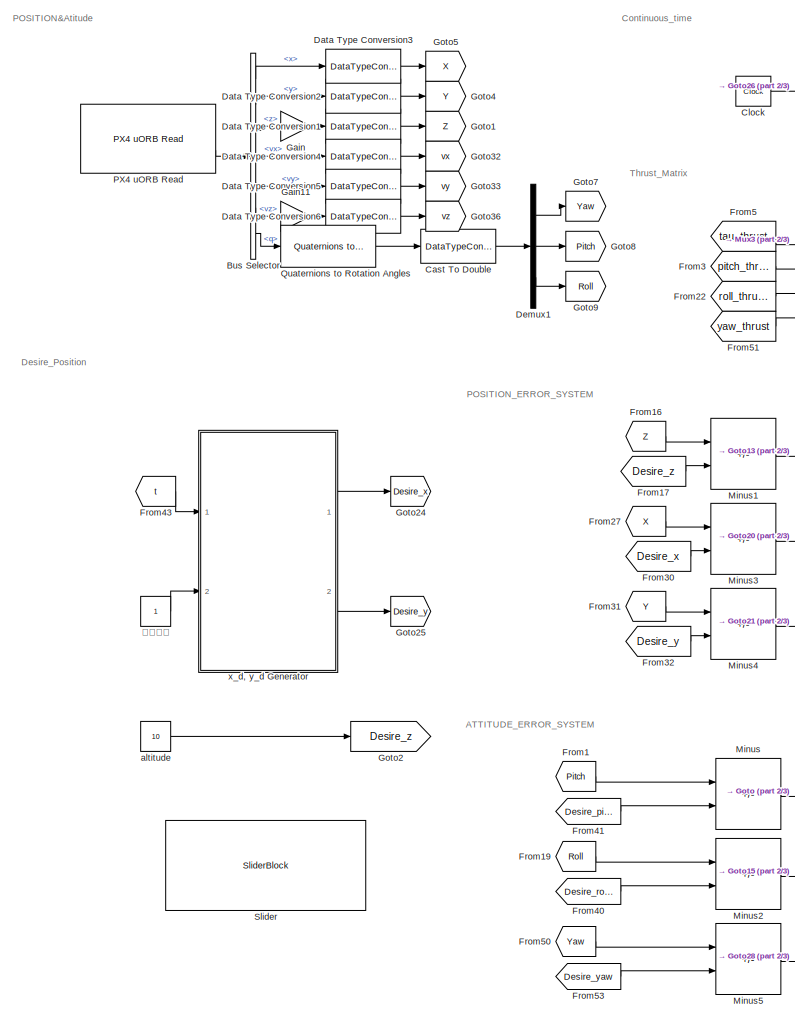
[diagram: root canvas - part 1/3, left side, full height]
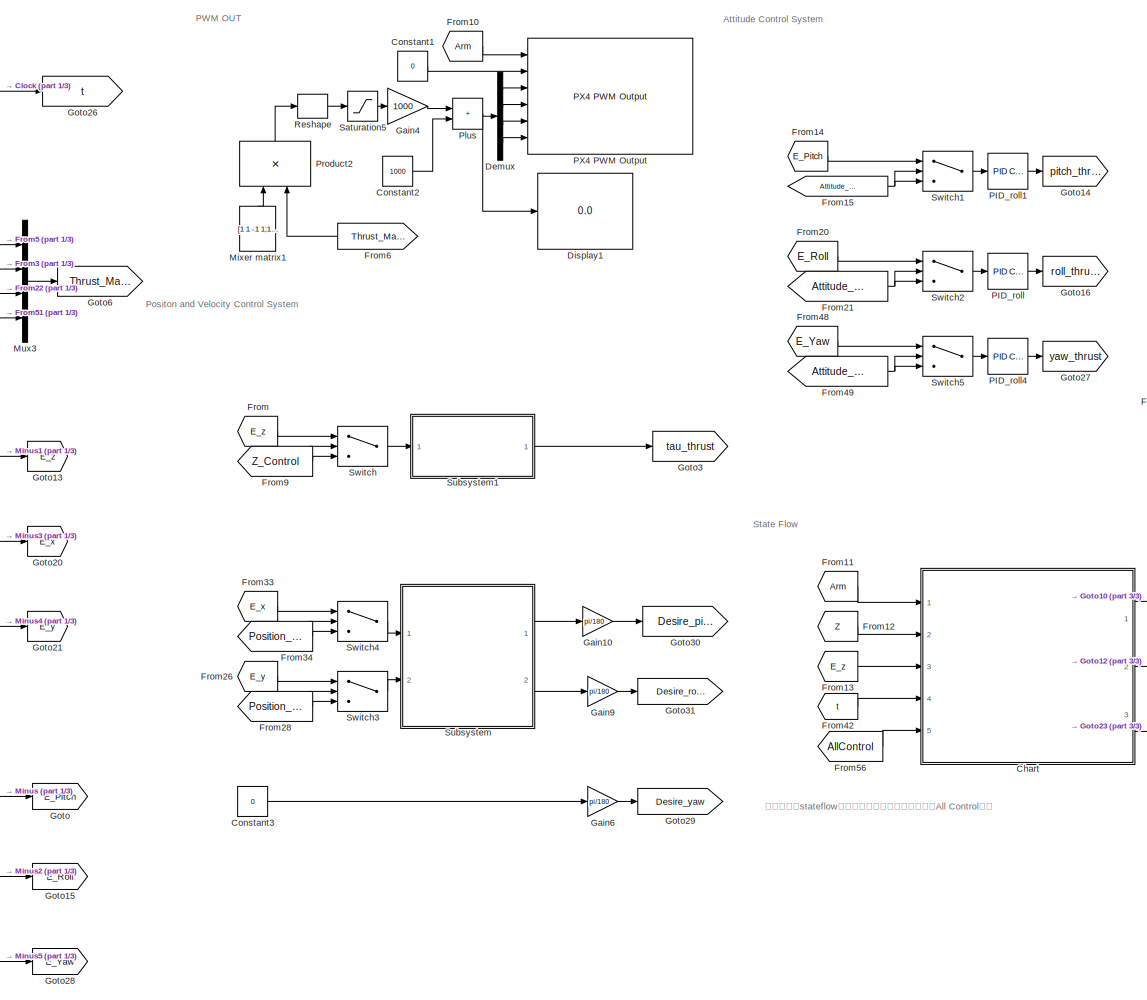
[diagram: root canvas - part 2/3, center side, full height]
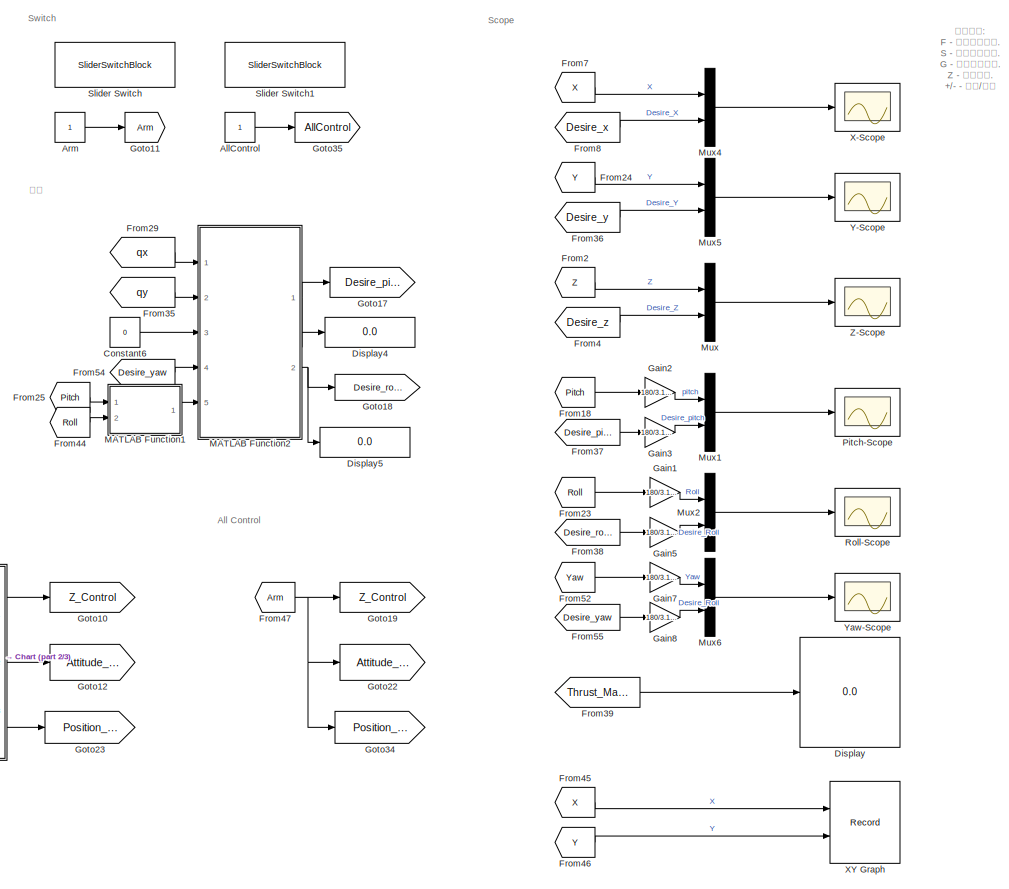
[diagram: root canvas - part 3/3, right side, full height]
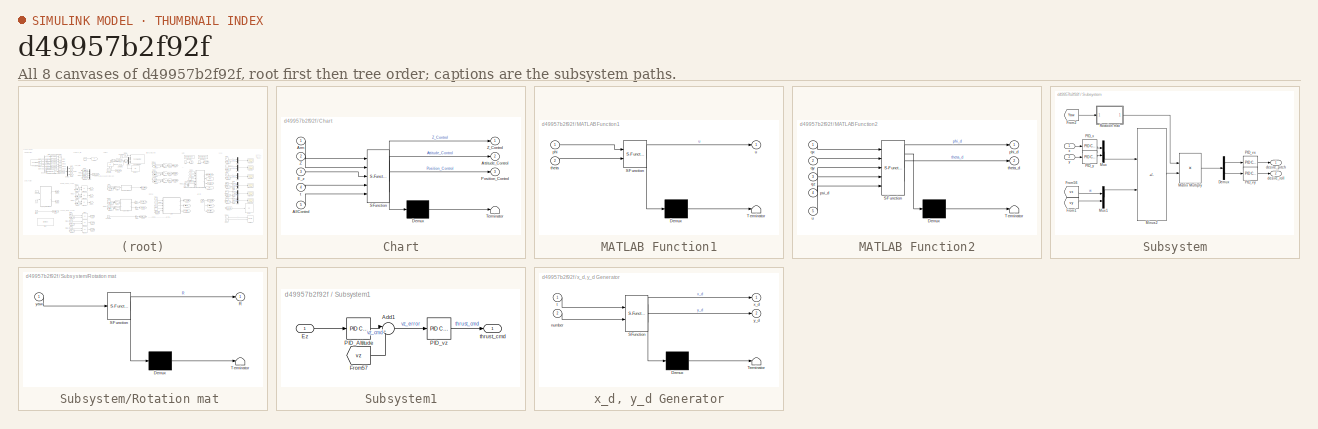
[diagram: thumbnail index - all 8 canvases of the model, root first then tree order]
MODEL slx_d49957b2f92f
KIND model
CONFIG AbsTol = auto
CONFIG EnableMultiTasking = on
CONFIG FixedStep = auto
CONFIG MaxStep = auto
CONFIG MinStep = auto
CONFIG RelTol = 1e-3
CONFIG SampleTimeConstraint = Unconstrained
CONFIG SolverName = FixedStepDiscrete
CONFIG StartTime = 0.0
CONFIG StopTime = inf
BLOCK [Constant] AllControl
  OutDataTypeStr = boolean
BLOCK [Constant] Arm
  OutDataTypeStr = boolean
BLOCK [BusSelector] Bus Selector
  OutputSignals = x,y,z,vx,vy,vz,q
  Ports = [1, 7]
BLOCK [DataTypeConversion] Cast To Double
  OutDataTypeStr = double
  RndMeth = Floor
  SaturateOnIntegerOverflow = off
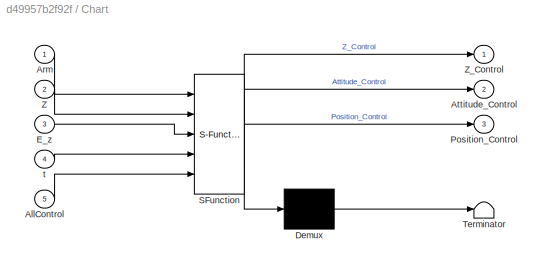
BLOCK [SubSystem] Chart
  ErrorFcn = Stateflow.Translate.translate
  PermitHierarchicalResolution = ExplicitOnly
  Ports = [5, 3]
  RequestExecContextInheritance = off
  SFBlockType = Chart
  TreatAsAtomicUnit = on
BLOCK [Demux] Chart/ Demux 
  Outputs = 1
  Ports = [1, 1]
BLOCK [S-Function] Chart/ SFunction 
  EnableBusSupport = on
  FunctionName = sf_sfun
  PortCounts = [5 4]
  Ports = [5, 4]
  SFcnIsStateOwnerBlock = off
  SFunctionDeploymentMode = off
  Tag = Stateflow S-Function 3
BLOCK [Terminator] Chart/ Terminator 
BLOCK [Inport] Chart/AllControl
  Port = 5
BLOCK [Inport] Chart/Arm
BLOCK [Outport] Chart/Attitude_Control
  Port = 2
BLOCK [Inport] Chart/E_z
  Port = 3
BLOCK [Outport] Chart/Position_Control
  Port = 3
BLOCK [Inport] Chart/Z
  Port = 2
BLOCK [Outport] Chart/Z_Control
BLOCK [Inport] Chart/t
  Port = 4
BLOCK [Clock] Clock
  DisplayTime = on
BLOCK [Constant] Constant1
  OutDataTypeStr = boolean
  Value = 0
BLOCK [Constant] Constant2
  OutDataTypeStr = uint16
  Value = 1000
BLOCK [Constant] Constant3
  Value = 0
BLOCK [Constant] Constant6
  Commented = on
  Value = 0
BLOCK [DataTypeConversion] Data Type Conversion1
  OutDataTypeStr = double
  RndMeth = Floor
  SaturateOnIntegerOverflow = off
BLOCK [DataTypeConversion] Data Type Conversion2
  OutDataTypeStr = double
  RndMeth = Floor
  SaturateOnIntegerOverflow = off
BLOCK [DataTypeConversion] Data Type Conversion3
  OutDataTypeStr = double
  RndMeth = Floor
  SaturateOnIntegerOverflow = off
BLOCK [DataTypeConversion] Data Type Conversion4
  OutDataTypeStr = double
  RndMeth = Floor
  SaturateOnIntegerOverflow = off
BLOCK [DataTypeConversion] Data Type Conversion5
  OutDataTypeStr = double
  RndMeth = Floor
  SaturateOnIntegerOverflow = off
BLOCK [DataTypeConversion] Data Type Conversion6
  OutDataTypeStr = double
  RndMeth = Floor
  SaturateOnIntegerOverflow = off
BLOCK [Demux] Demux
  Ports = [1, 4]
BLOCK [Demux] Demux1
  Outputs = 3
  Ports = [1, 3]
BLOCK [Display] Display
  Decimation = 1
  Ports = [1]
BLOCK [Display] Display1
  Decimation = 1
  Ports = [1]
BLOCK [Display] Display4
  Commented = on
  Decimation = 1
  Ports = [1]
BLOCK [Display] Display5
  Commented = on
  Decimation = 1
  Ports = [1]
BLOCK [From] From
  GotoTag = E_z
  TagVisibility = global
BLOCK [From] From1
  GotoTag = Pitch
  TagVisibility = global
BLOCK [From] From10
  GotoTag = Arm
BLOCK [From] From11
  GotoTag = Arm
BLOCK [From] From12
  GotoTag = Z
  TagVisibility = global
BLOCK [From] From13
  GotoTag = E_z
  TagVisibility = global
BLOCK [From] From14
  GotoTag = E_Pitch
  TagVisibility = global
BLOCK [From] From15
  GotoTag = Attitude_Control
BLOCK [From] From16
  GotoTag = Z
  TagVisibility = global
BLOCK [From] From17
  GotoTag = Desire_z
  TagVisibility = global
BLOCK [From] From18
  GotoTag = Pitch
  TagVisibility = global
BLOCK [From] From19
  GotoTag = Roll
BLOCK [From] From2
  GotoTag = Z
  TagVisibility = global
BLOCK [From] From20
  GotoTag = E_Roll
  TagVisibility = global
BLOCK [From] From21
  GotoTag = Attitude_Control
BLOCK [From] From22
  GotoTag = roll_thrust
BLOCK [From] From23
  GotoTag = Roll
BLOCK [From] From24
  GotoTag = Y
  TagVisibility = global
BLOCK [From] From25
  Commented = on
  GotoTag = Pitch
  TagVisibility = global
BLOCK [From] From26
  GotoTag = E_y
  TagVisibility = global
BLOCK [From] From27
  GotoTag = X
  TagVisibility = global
BLOCK [From] From28
  GotoTag = Position_Control
  TagVisibility = global
BLOCK [From] From29
  Commented = on
  GotoTag = qx
BLOCK [From] From3
  GotoTag = pitch_thrust
BLOCK [From] From30
  GotoTag = Desire_x
  TagVisibility = global
BLOCK [From] From31
  GotoTag = Y
  TagVisibility = global
BLOCK [From] From32
  GotoTag = Desire_y
  TagVisibility = global
BLOCK [From] From33
  GotoTag = E_x
  TagVisibility = global
BLOCK [From] From34
  GotoTag = Position_Control
  TagVisibility = global
BLOCK [From] From35
  Commented = on
  GotoTag = qy
BLOCK [From] From36
  GotoTag = Desire_y
  TagVisibility = global
BLOCK [From] From37
  GotoTag = Desire_pitch
  TagVisibility = global
BLOCK [From] From38
  GotoTag = Desire_roll
  TagVisibility = global
BLOCK [From] From39
  GotoTag = Thrust_Matrix
  TagVisibility = global
BLOCK [From] From4
  GotoTag = Desire_z
  TagVisibility = global
BLOCK [From] From40
  GotoTag = Desire_roll
  TagVisibility = global
BLOCK [From] From41
  GotoTag = Desire_pitch
  TagVisibility = global
BLOCK [From] From42
  GotoTag = t
  TagVisibility = global
BLOCK [From] From43
  GotoTag = t
  TagVisibility = global
BLOCK [From] From44
  Commented = on
  GotoTag = Roll
BLOCK [From] From45
  GotoTag = X
  TagVisibility = global
BLOCK [From] From46
  GotoTag = Y
  TagVisibility = global
BLOCK [From] From47
  Commented = on
  GotoTag = Arm
BLOCK [From] From48
  GotoTag = E_Yaw
  TagVisibility = global
BLOCK [From] From49
  GotoTag = Attitude_Control
BLOCK [From] From5
  GotoTag = tau_thrust
BLOCK [From] From50
  GotoTag = Yaw
  TagVisibility = global
BLOCK [From] From51
  GotoTag = yaw_thrust
BLOCK [From] From52
  GotoTag = Yaw
  TagVisibility = global
BLOCK [From] From53
  GotoTag = Desire_yaw
BLOCK [From] From54
  Commented = on
  GotoTag = Desire_yaw
BLOCK [From] From55
  GotoTag = Desire_yaw
BLOCK [From] From56
  GotoTag = AllControl
BLOCK [From] From6
  GotoTag = Thrust_Matrix
  NameLocation = top
  TagVisibility = global
BLOCK [From] From7
  GotoTag = X
  TagVisibility = global
BLOCK [From] From8
  GotoTag = Desire_x
  TagVisibility = global
BLOCK [From] From9
  GotoTag = Z_Control
BLOCK [Gain] Gain
  Gain = -1
BLOCK [Gain] Gain1
  Gain = 180/3.1415926
BLOCK [Gain] Gain10
  Gain = pi/180
BLOCK [Gain] Gain11
  Gain = -1
BLOCK [Gain] Gain2
  Gain = 180/3.1415926
BLOCK [Gain] Gain3
  Gain = 180/3.1415926
BLOCK [Gain] Gain4
  Gain = 1000
  OutDataTypeStr = uint16
BLOCK [Gain] Gain5
  Gain = 180/3.1415926
BLOCK [Gain] Gain6
  Gain = pi/180
BLOCK [Gain] Gain7
  Gain = 180/3.1415926
BLOCK [Gain] Gain8
  Gain = 180/3.1415926
BLOCK [Gain] Gain9
  Gain = pi/180
BLOCK [Goto] Goto
  GotoTag = E_Pitch
  TagVisibility = global
BLOCK [Goto] Goto1
  GotoTag = Z
  TagVisibility = global
BLOCK [Goto] Goto10
  GotoTag = Z_Control
BLOCK [Goto] Goto11
  GotoTag = Arm
BLOCK [Goto] Goto12
  GotoTag = Attitude_Control
BLOCK [Goto] Goto13
  GotoTag = E_z
  TagVisibility = global
BLOCK [Goto] Goto14
  GotoTag = pitch_thrust
BLOCK [Goto] Goto15
  GotoTag = E_Roll
  TagVisibility = global
BLOCK [Goto] Goto16
  GotoTag = roll_thrust
BLOCK [Goto] Goto17
  Commented = on
  GotoTag = Desire_pitch
  TagVisibility = global
BLOCK [Goto] Goto18
  Commented = on
  GotoTag = Desire_roll
  TagVisibility = global
BLOCK [Goto] Goto19
  Commented = on
  GotoTag = Z_Control
BLOCK [Goto] Goto2
  GotoTag = Desire_z
  TagVisibility = global
BLOCK [Goto] Goto20
  GotoTag = E_x
  TagVisibility = global
BLOCK [Goto] Goto21
  GotoTag = E_y
  TagVisibility = global
BLOCK [Goto] Goto22
  Commented = on
  GotoTag = Attitude_Control
BLOCK [Goto] Goto23
  GotoTag = Position_Control
  TagVisibility = global
BLOCK [Goto] Goto24
  GotoTag = Desire_x
  TagVisibility = global
BLOCK [Goto] Goto25
  GotoTag = Desire_y
  TagVisibility = global
BLOCK [Goto] Goto26
  GotoTag = t
  TagVisibility = global
BLOCK [Goto] Goto27
  GotoTag = yaw_thrust
BLOCK [Goto] Goto28
  GotoTag = E_Yaw
  TagVisibility = global
BLOCK [Goto] Goto29
  GotoTag = Desire_yaw
BLOCK [Goto] Goto3
  GotoTag = tau_thrust
BLOCK [Goto] Goto30
  GotoTag = Desire_pitch
  TagVisibility = global
BLOCK [Goto] Goto31
  GotoTag = Desire_roll
  TagVisibility = global
BLOCK [Goto] Goto32
  GotoTag = vx
  TagVisibility = global
BLOCK [Goto] Goto33
  GotoTag = vy
  TagVisibility = global
BLOCK [Goto] Goto34
  Commented = on
  GotoTag = Position_Control
  TagVisibility = global
BLOCK [Goto] Goto35
  GotoTag = AllControl
BLOCK [Goto] Goto36
  GotoTag = vz
  TagVisibility = global
BLOCK [Goto] Goto4
  GotoTag = Y
  TagVisibility = global
BLOCK [Goto] Goto5
  GotoTag = X
  TagVisibility = global
BLOCK [Goto] Goto6
  GotoTag = Thrust_Matrix
  TagVisibility = global
BLOCK [Goto] Goto7
  GotoTag = Yaw
  TagVisibility = global
BLOCK [Goto] Goto8
  GotoTag = Pitch
  TagVisibility = global
BLOCK [Goto] Goto9
  GotoTag = Roll
BLOCK [SubSystem] MATLAB Function1
  Commented = on
  ErrorFcn = Stateflow.Translate.translate
  PermitHierarchicalResolution = ExplicitOnly
  Ports = [2, 1]
  RequestExecContextInheritance = off
  SFBlockType = MATLAB Function
  TreatAsAtomicUnit = on
BLOCK [Demux] MATLAB Function1/ Demux 
  Outputs = 1
  Ports = [1, 1]
BLOCK [S-Function] MATLAB Function1/ SFunction 
  EnableBusSupport = on
  FunctionName = sf_sfun
  PortCounts = [2 2]
  Ports = [2, 2]
  SFcnIsStateOwnerBlock = off
  SFunctionDeploymentMode = off
  Tag = Stateflow S-Function 1
BLOCK [Terminator] MATLAB Function1/ Terminator 
BLOCK [Inport] MATLAB Function1/phi
BLOCK [Inport] MATLAB Function1/theta
  Port = 2
BLOCK [Outport] MATLAB Function1/u
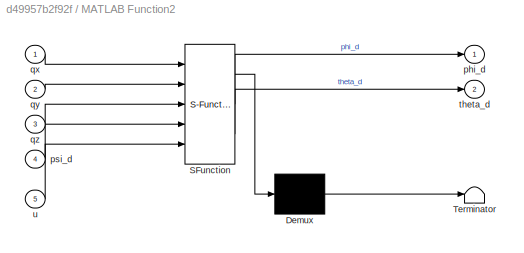
BLOCK [SubSystem] MATLAB Function2
  Commented = on
  ErrorFcn = Stateflow.Translate.translate
  PermitHierarchicalResolution = ExplicitOnly
  Ports = [5, 2]
  RequestExecContextInheritance = off
  SFBlockType = MATLAB Function
  TreatAsAtomicUnit = on
BLOCK [Demux] MATLAB Function2/ Demux 
  Outputs = 1
  Ports = [1, 1]
BLOCK [S-Function] MATLAB Function2/ SFunction 
  EnableBusSupport = on
  FunctionName = sf_sfun
  PortCounts = [5 3]
  Ports = [5, 3]
  SFcnIsStateOwnerBlock = off
  SFunctionDeploymentMode = off
  Tag = Stateflow S-Function 10
BLOCK [Terminator] MATLAB Function2/ Terminator 
BLOCK [Outport] MATLAB Function2/phi_d
BLOCK [Inport] MATLAB Function2/psi_d
  Port = 4
BLOCK [Inport] MATLAB Function2/qx
BLOCK [Inport] MATLAB Function2/qy
  Port = 2
BLOCK [Inport] MATLAB Function2/qz
  Port = 3
BLOCK [Outport] MATLAB Function2/theta_d
  Port = 2
BLOCK [Inport] MATLAB Function2/u
  Port = 5
BLOCK [Sum] Minus
  IconShape = rectangular
  Inputs = -+
  Ports = [2, 1]
BLOCK [Sum] Minus1
  IconShape = rectangular
  Inputs = -+
  Ports = [2, 1]
BLOCK [Sum] Minus2
  IconShape = rectangular
  Inputs = -+
  Ports = [2, 1]
BLOCK [Sum] Minus3
  IconShape = rectangular
  Inputs = -+
  Ports = [2, 1]
BLOCK [Sum] Minus4
  IconShape = rectangular
  Inputs = -+
  Ports = [2, 1]
BLOCK [Sum] Minus5
  IconShape = rectangular
  Inputs = -+
  Ports = [2, 1]
BLOCK [Constant] Mixer matrix1
  NameLocation = left
  OutDataTypeStr = Inherit: Inherit via back propagation
  Value = [1 1 -1 1;1 -1 1 1;1 1 1 -1;1 -1 -1 -1]
BLOCK [Mux] Mux
  DisplayOption = bar
  Inputs = 2
  Ports = [2, 1]
BLOCK [Mux] Mux1
  DisplayOption = bar
  Inputs = 2
  Ports = [2, 1]
BLOCK [Mux] Mux2
  DisplayOption = bar
  Inputs = 2
  Ports = [2, 1]
BLOCK [Mux] Mux3
  DisplayOption = bar
  Ports = [4, 1]
BLOCK [Mux] Mux4
  DisplayOption = bar
  Inputs = 2
  Ports = [2, 1]
BLOCK [Mux] Mux5
  DisplayOption = bar
  Inputs = 2
  Ports = [2, 1]
BLOCK [Mux] Mux6
  DisplayOption = bar
  Inputs = 2
  Ports = [2, 1]
BLOCK [Reference] PID_roll  REF=slpidlib/PID Controller
  Ports = [1, 1]
  SourceBlock = slpidlib/PID Controller
  SourceProductBaseCode = SL
  SourceType = PID 1dof
BLOCK [Reference] PID_roll1  REF=slpidlib/PID Controller
  Ports = [1, 1]
  SourceBlock = slpidlib/PID Controller
  SourceProductBaseCode = SL
  SourceType = PID 1dof
BLOCK [Reference] PID_roll4  REF=slpidlib/PID Controller
  Ports = [1, 1]
  SourceBlock = slpidlib/PID Controller
  SourceProductBaseCode = SL
  SourceType = PID 1dof
BLOCK [Reference] PX4 PWM Output  REF=px4lib/PX4 PWM Output
  Ports = [6]
  SourceBlock = px4lib/PX4 PWM Output
  SourceProductBaseCode = PX4AUTOPILOTS
  SourceType = PX4 PWM Output
BLOCK [Reference] PX4 uORB Read  REF=px4uORBlib/PX4 uORB Read
  Ports = [0, 2]
  SourceBlock = px4uORBlib/PX4 uORB Read
  SourceProductBaseCode = PX4AUTOPILOTS
  SourceType = PX4 uORB Read
BLOCK [Scope] Pitch-Scope
  Floating = off
  NumInputPorts = 1
  Ports = [1]
  ScopeSpecificationString = Simulink.scopes.TimeScopeBlockCfg('CurrentConfiguration', extmgr.ConfigurationSet(extmgr.Configuration('Core','General UI',true),extmgr.Configuration('Core','Source UI',true),extmgr.Configuration('Sources','WiredSimulink',true,'DataLoggingVariableName','ScopeData1'),extmgr.Configuration('Visuals','Time Domain',true,'SerializedDisplays',{struct('MinYLimReal','-20.28641','MaxYLimReal','16.23143','YL...<+1509ch>
BLOCK [Sum] Plus
  IconShape = rectangular
  Ports = [2, 1]
BLOCK [Product] Product2
  Multiplication = Matrix(*)
  NameLocation = right
  Ports = [2, 1]
  RndMeth = Zero
BLOCK [Reference] Quaternions to Rotation Angles  REF=sharedtransform/Quaternions to Rotation Angles
  AttributesFormatString = Rotation Order: %<rotationOrder>
  Ports = [1, 1]
  SourceBlock = sharedtransform/Quaternions to Rotation Angles
  SourceProductBaseCode = AE,PW,DR,MT,VE
  SourceType = Quat2Ang
BLOCK [Reshape] Reshape
  OutputDimensionality = Row vector (2-D)
  Ports = [1, 1]
BLOCK [Scope] Roll-Scope
  Floating = off
  NumInputPorts = 1
  Ports = [1]
  ScopeSpecificationString = Simulink.scopes.TimeScopeBlockCfg('CurrentConfiguration', extmgr.ConfigurationSet(extmgr.Configuration('Core','General UI',true),extmgr.Configuration('Core','Source UI',true),extmgr.Configuration('Sources','WiredSimulink',true,'DataLoggingVariableName','ScopeData2'),extmgr.Configuration('Visuals','Time Domain',true,'SerializedDisplays',{struct('MinYLimReal','-39.4803','MaxYLimReal','47.13303','YLa...<+1505ch>
BLOCK [Saturate] Saturation5
  LowerLimit = 0
  UpperLimit = 1
BLOCK [SliderBlock] Slider
BLOCK [SliderSwitchBlock] Slider Switch
BLOCK [SliderSwitchBlock] Slider Switch1
BLOCK [SubSystem] Subsystem
  Ports = [2, 2]
  RequestExecContextInheritance = off
BLOCK [Demux] Subsystem/Demux
  Outputs = 2
  Ports = [1, 2]
BLOCK [From] Subsystem/From1
  GotoTag = vy
  TagVisibility = global
BLOCK [From] Subsystem/From2
  GotoTag = Yaw
  TagVisibility = global
BLOCK [From] Subsystem/From56
  GotoTag = vx
  TagVisibility = global
BLOCK [Product] Subsystem/Matrix Multiply
  Multiplication = Matrix(*)
  Ports = [2, 1]
BLOCK [Sum] Subsystem/Minus2
  IconShape = rectangular
  Inputs = +-
  Ports = [2, 1]
BLOCK [Mux] Subsystem/Mux
  DisplayOption = bar
  Inputs = 2
  Ports = [2, 1]
BLOCK [Mux] Subsystem/Mux1
  DisplayOption = bar
  Inputs = 2
  Ports = [2, 1]
BLOCK [Reference] Subsystem/PID_vx  REF=slpidlib/PID Controller
  NameLocation = left
  Ports = [1, 1]
  SourceBlock = slpidlib/PID Controller
  SourceProductBaseCode = SL
  SourceType = PID 1dof
BLOCK [Reference] Subsystem/PID_vy  REF=slpidlib/PID Controller
  NameLocation = left
  Ports = [1, 1]
  SourceBlock = slpidlib/PID Controller
  SourceProductBaseCode = SL
  SourceType = PID 1dof
BLOCK [Reference] Subsystem/PID_x  REF=slpidlib/PID Controller
  NameLocation = left
  Ports = [1, 1]
  SourceBlock = slpidlib/PID Controller
  SourceProductBaseCode = SL
  SourceType = PID 1dof
BLOCK [Reference] Subsystem/PID_y  REF=slpidlib/PID Controller
  Ports = [1, 1]
  SourceBlock = slpidlib/PID Controller
  SourceProductBaseCode = SL
  SourceType = PID 1dof
BLOCK [SubSystem] Subsystem/Rotation mat 
  ErrorFcn = Stateflow.Translate.translate
  PermitHierarchicalResolution = ExplicitOnly
  Ports = [1, 1]
  RequestExecContextInheritance = off
  SFBlockType = MATLAB Function
  TreatAsAtomicUnit = on
BLOCK [Demux] Subsystem/Rotation mat / Demux 
  Outputs = 1
  Ports = [1, 1]
BLOCK [S-Function] Subsystem/Rotation mat / SFunction 
  EnableBusSupport = on
  FunctionName = sf_sfun
  PortCounts = [1 2]
  Ports = [1, 2]
  SFcnIsStateOwnerBlock = off
  SFunctionDeploymentMode = off
  Tag = Stateflow S-Function 2
BLOCK [Terminator] Subsystem/Rotation mat / Terminator 
BLOCK [Outport] Subsystem/Rotation mat /R
BLOCK [Inport] Subsystem/Rotation mat /yaw
BLOCK [Outport] Subsystem/desire_pitch
BLOCK [Outport] Subsystem/desire_roll
  Port = 2
BLOCK [Inport] Subsystem/x
BLOCK [Inport] Subsystem/y
  Port = 2
BLOCK [SubSystem] Subsystem1
  Ports = [1, 1]
  RequestExecContextInheritance = off
BLOCK [Sum] Subsystem1/Add1
  Inputs = |+-
  Ports = [2, 1]
BLOCK [Inport] Subsystem1/Ez
BLOCK [From] Subsystem1/From57
  GotoTag = vz
  TagVisibility = global
BLOCK [Reference] Subsystem1/PID_Altitude  REF=slpidlib/PID Controller
  Ports = [1, 1]
  SourceBlock = slpidlib/PID Controller
  SourceProductBaseCode = SL
  SourceType = PID 1dof
BLOCK [Reference] Subsystem1/PID_vz  REF=slpidlib/PID Controller
  Ports = [1, 1]
  SourceBlock = slpidlib/PID Controller
  SourceProductBaseCode = SL
  SourceType = PID 1dof
BLOCK [Outport] Subsystem1/thrust_cmd
BLOCK [Switch] Switch
  Criteria = u2 ~= 0
  InputSameDT = off
  SaturateOnIntegerOverflow = off
BLOCK [Switch] Switch1
  Criteria = u2 ~= 0
  InputSameDT = off
  SaturateOnIntegerOverflow = off
BLOCK [Switch] Switch2
  Criteria = u2 ~= 0
  InputSameDT = off
  SaturateOnIntegerOverflow = off
BLOCK [Switch] Switch3
  Criteria = u2 ~= 0
  InputSameDT = off
  SaturateOnIntegerOverflow = off
BLOCK [Switch] Switch4
  Criteria = u2 ~= 0
  InputSameDT = off
  SaturateOnIntegerOverflow = off
BLOCK [Switch] Switch5
  Criteria = u2 ~= 0
  InputSameDT = off
  SaturateOnIntegerOverflow = off
BLOCK [Scope] X-Scope
  Floating = off
  NumInputPorts = 1
  Ports = [1]
  ScopeSpecificationString = Simulink.scopes.TimeScopeBlockCfg('CurrentConfiguration', extmgr.ConfigurationSet(extmgr.Configuration('Core','General UI',true),extmgr.Configuration('Core','Source UI',true),extmgr.Configuration('Sources','WiredSimulink',true,'DataLoggingVariableName','ScopeData3'),extmgr.Configuration('Visuals','Time Domain',true,'SerializedDisplays',{struct('MinYLimReal','-0.21816','MaxYLimReal','0.41639','YLab...<+1508ch>
BLOCK [Record] XY Graph
  CompatibilityTag = XY
  FileSettingsInternal = {"entries":[{"content":{"excelSettings":{"content":{},"type":"Streamout.ExcelSettings"}},"type":"Streamout.FileSettingStorage","uuid":"3eefaba3-f31a-4122-aa8d-0a431d9ef026"}],"packageUris":["http://schema.mathworks.com/mf0/streamout_blocks/R2020a"],"version":"1.0"}
  Layout = [1 1]
  Ports = [2]
  SignalsInternal = {"entries":[{"content":{"signals":[{"content":{"blockPath":["No6_QuadcopterTrackPositionControl/XY Graph"],"channel":[],"dimensions":[1,1],"domain":"No6_QuadcopterTrackPositionControl/XY Graph","lineColor":"#a2142f","plots":[1],"port":1,"sid":[""],"signalID":2687,"signalName":"X"},"type":"RecordBlkView.Signal","uuid":"a0e0af7c-41c2-4f79-8c24-cda5a214b61d"},{"content":{"blockPath":["No6_QuadcopterT...<+459ch>
  VisualizationBindings = {"xyplotplugin":{"info":[{"series":[{"bindingParametersList":[{"parameter":"X-Axis","signalID":2687,"signalName":"X"},{"parameter":"Y-Axis","signalID":2691,"signalName":"Y"}],"seriesID":33758}],"subplotID":1}]}}
BLOCK [Scope] Y-Scope
  Floating = off
  NumInputPorts = 1
  Ports = [1]
  ScopeSpecificationString = Simulink.scopes.TimeScopeBlockCfg('CurrentConfiguration', extmgr.ConfigurationSet(extmgr.Configuration('Core','General UI',true),extmgr.Configuration('Core','Source UI',true),extmgr.Configuration('Sources','WiredSimulink',true,'DataLoggingVariableName','ScopeData4'),extmgr.Configuration('Visuals','Time Domain',true,'SerializedDisplays',{struct('MinYLimReal','-0.2617','MaxYLimReal','1.19376','YLabe...<+1492ch>
BLOCK [Scope] Yaw-Scope
  Floating = off
  NumInputPorts = 1
  Ports = [1]
  ScopeSpecificationString = Simulink.scopes.TimeScopeBlockCfg('CurrentConfiguration', extmgr.ConfigurationSet(extmgr.Configuration('Core','General UI',true),extmgr.Configuration('Core','Source UI',true),extmgr.Configuration('Sources','WiredSimulink',true,'DataLoggingVariableName','ScopeData1'),extmgr.Configuration('Visuals','Time Domain',true,'SerializedDisplays',{struct('MinYLimReal','-11.94825','MaxYLimReal','13.0474','YLa...<+1490ch>
BLOCK [Scope] Z-Scope
  Floating = off
  NumInputPorts = 1
  Ports = [1]
  ScopeSpecificationString = Simulink.scopes.TimeScopeBlockCfg('CurrentConfiguration', extmgr.ConfigurationSet(extmgr.Configuration('Core','General UI',true),extmgr.Configuration('Core','Source UI',true),extmgr.Configuration('Sources','WiredSimulink',true),extmgr.Configuration('Visuals','Time Domain',true,'SerializedDisplays',{struct('MinYLimReal','-2.11635','MaxYLimReal','19.23692','YLabelReal','','MinYLimMag','0.00000','Max...<+1473ch>
BLOCK [Constant] altitude
  Value = 10
BLOCK [SubSystem] x_d, y_d Generator
  ErrorFcn = Stateflow.Translate.translate
  PermitHierarchicalResolution = ExplicitOnly
  Ports = [2, 2]
  RequestExecContextInheritance = off
  SFBlockType = MATLAB Function
  TreatAsAtomicUnit = on
BLOCK [Demux] x_d, y_d Generator/ Demux 
  Outputs = 1
  Ports = [1, 1]
BLOCK [S-Function] x_d, y_d Generator/ SFunction 
  EnableBusSupport = on
  FunctionName = sf_sfun
  PortCounts = [2 3]
  Ports = [2, 3]
  SFcnIsStateOwnerBlock = off
  SFunctionDeploymentMode = off
  Tag = Stateflow S-Function 9
BLOCK [Terminator] x_d, y_d Generator/ Terminator 
BLOCK [Inport] x_d, y_d Generator/number
  Port = 2
BLOCK [Inport] x_d, y_d Generator/t
BLOCK [Outport] x_d, y_d Generator/x_d
BLOCK [Outport] x_d, y_d Generator/y_d
  Port = 2
BLOCK [Constant] 轨迹编号
ANNOTATION (root): 视角调整: F - 第一人称视角. S - 地面固定视角. G - 稳定云台视角. Z - 切换视角. +/- - 放大/缩小 0/ENTER - 恢复默认视野设置. 仿真操作: Q - 取消基于mavlink协议的仿真. I - 使能mavlink仿真. H - 切换仪表盘. C - 清除仪表盘上数据. R - 打开/关闭侧栏日志. T - 更新日志. D - 打开/关闭侧栏传感器参数. F1 - Show this key commands reference. P - 暂停. ESC - 退出仿真. SPACE - 重置飞行器回到初始位置.
ANNOTATION (root): ATTITUDE_ERROR_SYSTEM
ANNOTATION (root): All Control
ANNOTATION (root): Attitude Control System
ANNOTATION (root): Continuous_time
ANNOTATION (root): Desire_Position
ANNOTATION (root): POSITION&Atitude
ANNOTATION (root): POSITION_ERROR_SYSTEM
ANNOTATION (root): PWM OUT
ANNOTATION (root): Positon and Velocity Control System
ANNOTATION (root): Scope
ANNOTATION (root): State Flow
ANNOTATION (root): Switch
ANNOTATION (root): Thrust_Matrix
ANNOTATION (root): 备用
ANNOTATION (root): 如果没有装stateflow，可以注释掉这个模块，解注释All Control模块
LINE AllControl:1 -> Goto35:1
LINE Arm:1 -> Goto11:1
LINE Bus Selector:1 -> Data Type Conversion3:1
LINE Bus Selector:2 -> Data Type Conversion2:1
LINE Bus Selector:3 -> Gain:1
LINE Bus Selector:4 -> Data Type Conversion4:1
LINE Bus Selector:5 -> Data Type Conversion5:1
LINE Bus Selector:6 -> Gain11:1
LINE Bus Selector:7 -> Quaternions to Rotation Angles:1
LINE Cast To Double:1 -> Demux1:1
LINE Chart:1 -> Goto10:1
LINE Chart:2 -> Goto12:1
LINE Chart:3 -> Goto23:1
LINE Clock:1 -> Goto26:1
LINE Constant1:1 -> PX4 PWM Output:2
LINE Constant2:1 -> Plus:2
LINE Constant3:1 -> Gain6:1
LINE Constant6:1 -> MATLAB Function2:3
LINE Data Type Conversion1:1 -> Goto1:1
LINE Data Type Conversion2:1 -> Goto4:1
LINE Data Type Conversion3:1 -> Goto5:1
LINE Data Type Conversion4:1 -> Goto32:1
LINE Data Type Conversion5:1 -> Goto33:1
LINE Data Type Conversion6:1 -> Goto36:1
LINE Demux1:1 -> Goto7:1
LINE Demux1:2 -> Goto8:1
LINE Demux1:3 -> Goto9:1
LINE Demux:1 -> PX4 PWM Output:3
LINE Demux:2 -> PX4 PWM Output:4
LINE Demux:3 -> PX4 PWM Output:5
LINE Demux:4 -> PX4 PWM Output:6
LINE From10:1 -> PX4 PWM Output:1
LINE From11:1 -> Chart:1
LINE From12:1 -> Chart:2
LINE From13:1 -> Chart:3
LINE From14:1 -> Switch1:1
NET From15:1 -> Switch1:2, Switch1:3
LINE From16:1 -> Minus1:1
LINE From17:1 -> Minus1:2
LINE From18:1 -> Gain2:1
LINE From19:1 -> Minus2:1
LINE From1:1 -> Minus:1
LINE From20:1 -> Switch2:1
NET From21:1 -> Switch2:2, Switch2:3
LINE From22:1 -> Mux3:3
LINE From23:1 -> Gain1:1
LINE From24:1 -> Mux5:1
LINE From25:1 -> MATLAB Function1:1
LINE From26:1 -> Switch3:1
LINE From27:1 -> Minus3:1
NET From28:1 -> Switch3:2, Switch3:3
LINE From29:1 -> MATLAB Function2:1
LINE From2:1 -> Mux:1
LINE From30:1 -> Minus3:2
LINE From31:1 -> Minus4:1
LINE From32:1 -> Minus4:2
LINE From33:1 -> Switch4:1
NET From34:1 -> Switch4:2, Switch4:3
LINE From35:1 -> MATLAB Function2:2
LINE From36:1 -> Mux5:2
LINE From37:1 -> Gain3:1
LINE From38:1 -> Gain5:1
LINE From39:1 -> Display:1
LINE From3:1 -> Mux3:2
LINE From40:1 -> Minus2:2
LINE From41:1 -> Minus:2
LINE From42:1 -> Chart:4
LINE From43:1 -> x_d, y_d Generator:1
LINE From44:1 -> MATLAB Function1:2
LINE From45:1 -> XY Graph:1
LINE From46:1 -> XY Graph:2
NET From47:1 -> Goto19:1, Goto22:1, Goto34:1
LINE From48:1 -> Switch5:1
NET From49:1 -> Switch5:2, Switch5:3
LINE From4:1 -> Mux:2
LINE From50:1 -> Minus5:1
LINE From51:1 -> Mux3:4
LINE From52:1 -> Gain7:1
LINE From53:1 -> Minus5:2
LINE From54:1 -> MATLAB Function2:4
LINE From55:1 -> Gain8:1
LINE From56:1 -> Chart:5
LINE From5:1 -> Mux3:1
LINE From6:1 -> Product2:2
LINE From7:1 -> Mux4:1
LINE From8:1 -> Mux4:2
NET From9:1 -> Switch:2, Switch:3
LINE From:1 -> Switch:1
LINE Gain10:1 -> Goto30:1
LINE Gain11:1 -> Data Type Conversion6:1
LINE Gain1:1 -> Mux2:1
LINE Gain2:1 -> Mux1:1
LINE Gain3:1 -> Mux1:2
LINE Gain4:1 -> Plus:1
LINE Gain5:1 -> Mux2:2
LINE Gain6:1 -> Goto29:1
LINE Gain7:1 -> Mux6:1
LINE Gain8:1 -> Mux6:2
LINE Gain9:1 -> Goto31:1
LINE Gain:1 -> Data Type Conversion1:1
LINE MATLAB Function1:1 -> MATLAB Function2:5
NET MATLAB Function2:1 -> Display4:1, Goto17:1
NET MATLAB Function2:2 -> Display5:1, Goto18:1
LINE Minus1:1 -> Goto13:1
LINE Minus2:1 -> Goto15:1
LINE Minus3:1 -> Goto20:1
LINE Minus4:1 -> Goto21:1
LINE Minus5:1 -> Goto28:1
LINE Minus:1 -> Goto:1
LINE Mixer matrix1:1 -> Product2:1
LINE Mux1:1 -> Pitch-Scope:1
LINE Mux2:1 -> Roll-Scope:1
LINE Mux3:1 -> Goto6:1
LINE Mux4:1 -> X-Scope:1
LINE Mux5:1 -> Y-Scope:1
LINE Mux6:1 -> Yaw-Scope:1
LINE Mux:1 -> Z-Scope:1
LINE PID_roll1:1 -> Goto14:1
LINE PID_roll4:1 -> Goto27:1
LINE PID_roll:1 -> Goto16:1
LINE PX4 uORB Read:2 -> Bus Selector:1
NET Plus:1 -> Demux:1, Display1:1
LINE Product2:1 -> Reshape:1
LINE Quaternions to Rotation Angles:1 -> Cast To Double:1
LINE Reshape:1 -> Saturation5:1
LINE Saturation5:1 -> Gain4:1
LINE Subsystem/Demux:1 -> Subsystem/PID_vx:1
LINE Subsystem/Demux:2 -> Subsystem/PID_vy:1
LINE Subsystem/From1:1 -> Subsystem/Mux1:2
LINE Subsystem/From2:1 -> Subsystem/Rotation mat :1
LINE Subsystem/From56:1 -> Subsystem/Mux1:1
LINE Subsystem/Matrix Multiply:1 -> Subsystem/Demux:1
LINE Subsystem/Minus2:1 -> Subsystem/Matrix Multiply:2
LINE Subsystem/Mux1:1 -> Subsystem/Minus2:2
LINE Subsystem/Mux:1 -> Subsystem/Minus2:1
LINE Subsystem/PID_vx:1 -> Subsystem/desire_pitch:1
LINE Subsystem/PID_vy:1 -> Subsystem/desire_roll:1
LINE Subsystem/PID_x:1 -> Subsystem/Mux:1
LINE Subsystem/PID_y:1 -> Subsystem/Mux:2
LINE Subsystem/Rotation mat :1 -> Subsystem/Matrix Multiply:1
LINE Subsystem/x:1 -> Subsystem/PID_x:1
LINE Subsystem/y:1 -> Subsystem/PID_y:1
LINE Subsystem1/Add1:1 -> Subsystem1/PID_vz:1
LINE Subsystem1/Ez:1 -> Subsystem1/PID_Altitude:1
LINE Subsystem1/From57:1 -> Subsystem1/Add1:2
LINE Subsystem1/PID_Altitude:1 -> Subsystem1/Add1:1
LINE Subsystem1/PID_vz:1 -> Subsystem1/thrust_cmd:1
LINE Subsystem1:1 -> Goto3:1
LINE Subsystem:1 -> Gain10:1
LINE Subsystem:2 -> Gain9:1
LINE Switch1:1 -> PID_roll1:1
LINE Switch2:1 -> PID_roll:1
LINE Switch3:1 -> Subsystem:2
LINE Switch4:1 -> Subsystem:1
LINE Switch5:1 -> PID_roll4:1
LINE Switch:1 -> Subsystem1:1
LINE altitude:1 -> Goto2:1
LINE x_d, y_d Generator:1 -> Goto24:1
LINE x_d, y_d Generator:2 -> Goto25:1
LINE 轨迹编号:1 -> x_d, y_d Generator:2
note: NET lines group one-source signal fan-out (src -> all destinations, sorted); 1:1 wires keep LINE
CHART Subsystem/Rotation mat
 states=1 transitions=1
  STATE_LABEL 'eML_blk_kernel()'
  STATE_LABEL "SCRIPT:\nfunction R = get_r_mat(yaw)\nR = [-cos(yaw) sin(yaw); sin(yaw) cos(yaw)]';\n"
CHART Chart states=10 transitions=9
  STATE_LABEL 'Start_Up'
  STATE_LABEL 'Ready\nentry,during:\nif Z < 1&& Z > -1\n    state=1;\nend\n'
  STATE_LABEL 'Takeoff\nentry:\nt1=t;\nduring:\ncontrolAltitude(1);\n'
  STATE_LABEL '[Arm==1&&state==1]'
  STATE_LABEL '[~AllControl]'
  STATE_LABEL 'Ready\nentry,during:\nif Z < 1&& Z > -1\n    state=1;\nend\n'
  STATE_LABEL 'Takeoff\nentry:\nt1=t;\nduring:\ncontrolAltitude(1);\n'
  STATE_LABEL 'controlAltitude(bool)'
  STATE_LABEL '{Z_Control=bool;}'
  STATE_LABEL 'controlAttitude(bool)'
  STATE_LABEL '{Attitude_Control=bool;}'
  STATE_LABEL 'Position_Control\n\n'
  STATE_LABEL 'Hold\nentry,during:\ncontrolAltitude(1);'
  STATE_LABEL 'Attitude\nentry,during:\ncontrolAttitude(1);'
  STATE_LABEL 'Position\nentry,during:\n controlPosition(1);'
  STATE_LABEL 'Hold\nentry,during:\ncontrolAltitude(1);'
  STATE_LABEL 'Attitude\nentry,during:\ncontrolAttitude(1);'
  STATE_LABEL 'Position\nentry,during:\n controlPosition(1);'
  STATE_LABEL 'controlPosition(bool)'
  STATE_LABEL '{Position_Control=bool;}'
CHART x_d, y_d
Generator states=1 transitions=1
  STATE_LABEL 'eML_blk_kernel()'
  STATE_LABEL 'SCRIPT:\nfunction [x_d, y_d] = fcn(t,number)\n%--------------------------------------------------------------------------\n% Set Parameters:\n%pi = 3.14159265358;\nr=2;\nT=20;\nomega=2*pi/T;\nt_f=T/4;\n%--------------------------------------------------------------------------\n% Define temp of outputs\no_X = 0;         o_Y = 0;\ndot_o_X  = 0;    dot_o_Y  = 0;\n%------------------------------------------------...<+398ch>'
CHART MATLAB Function2 states=1 transitions=1
  STATE_LABEL 'eML_blk_kernel()'
  STATE_LABEL 'SCRIPT:\nfunction [phi_d,theta_d] = fcn(qx,qy,qz,psi_d,u)\ng = 9.8;\nm =0.8;\nc = m*(qx*sin(psi_d)-qy*cos(psi_d))/u;\nif abs(c) <= 1\n    a = asin(c);\nelse\n    a = asin(abs(c)/c*1);\nend\nb = atan((qx*cos(psi_d)+qy*sin(psi_d))/(g+qz));\nif a>pi/6\n    a = pi/6;\nelseif a<-pi/6\n    a = -pi/6;   \nend\nif b>pi\n    b = pi;\nelseif b<-pi/6\n    b = -pi/6;\nend\nphi_d = a;\ntheta_d = -b;\n%Zhao B, Xian B, Zhang Y, et al....<+176ch>'
CHART MATLAB Function1 states=1 transitions=1
  STATE_LABEL 'eML_blk_kernel()'
  STATE_LABEL 'SCRIPT:\nfunction u = fcn(phi,theta)\nm = 0.8;\ng = 9.8;\nu =m*g/(cos(theta)*cos(phi)) ;\n'
CHART  states=0 transitions=0
CHART  states=0 transitions=0
CHART  states=0 transitions=0
CHART  states=0 transitions=0
CHART  states=0 transitions=0
